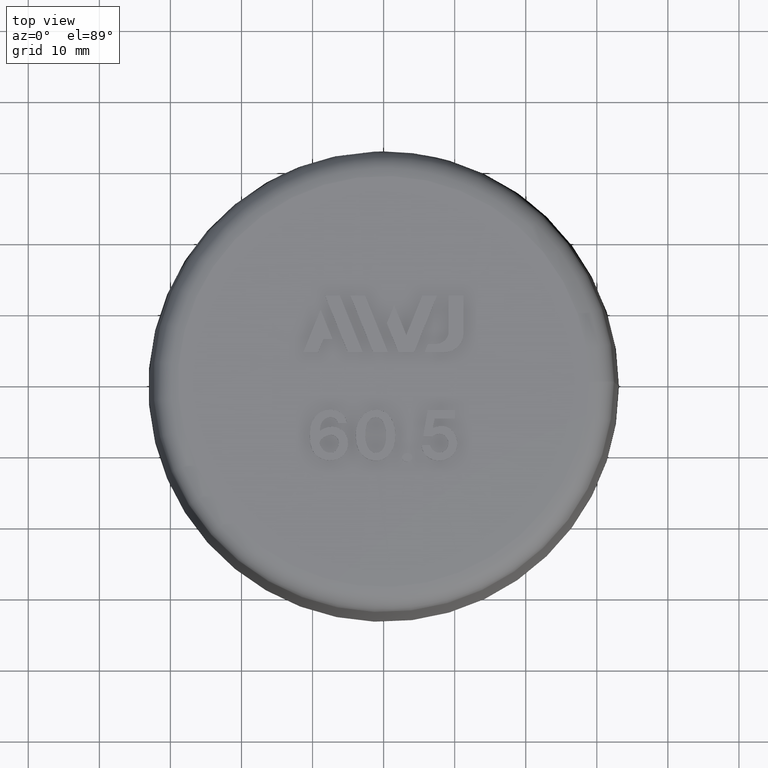
[diagram: clean part render]
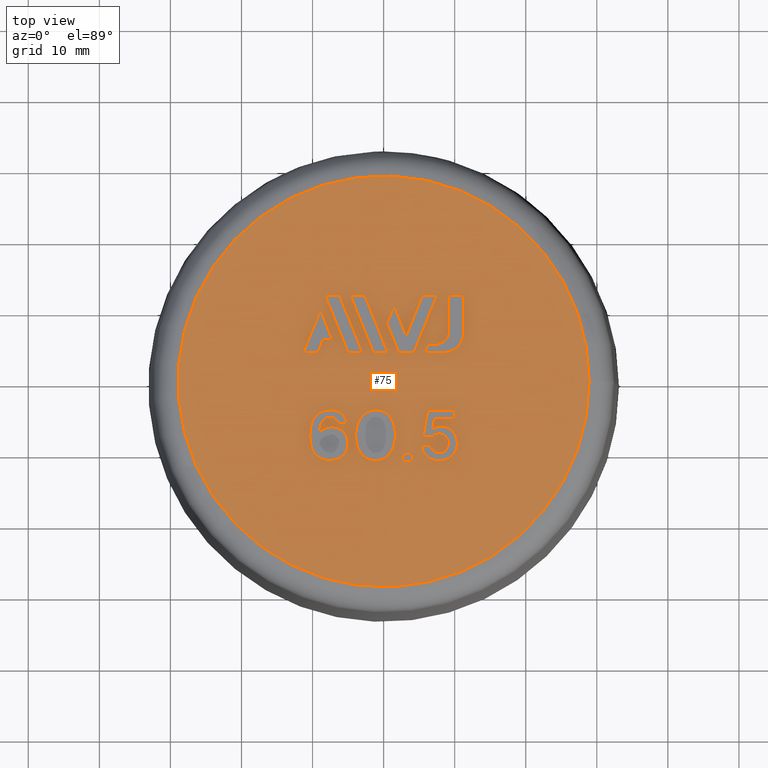
[diagram: same view with one face highlighted and labeled with its STEP entity id]
A machine part, top view. The second image highlights one B-rep face of the part: STEP entity #75.
In plain terms, the highlighted planar face has unit normal (0, 0, -1).
Its self-contained STEP definition (entity closure, byte-faithful):
#75 = ADVANCED_FACE( '', ( #141, #142, #143, #144, #145, #146, #147, #148, #149, #150 ), #151, .F. );
#141 = FACE_BOUND( '', #290, .T. );
#142 = FACE_BOUND( '', #291, .T. );
#143 = FACE_BOUND( '', #292, .T. );
#144 = FACE_OUTER_BOUND( '', #293, .T. );
#145 = FACE_BOUND( '', #294, .T. );
#146 = FACE_BOUND( '', #295, .T. );
#147 = FACE_BOUND( '', #296, .T. );
#148 = FACE_BOUND( '', #297, .T. );
#149 = FACE_BOUND( '', #298, .T. );
#150 = FACE_BOUND( '', #299, .T. );
#151 = PLANE( '', #300 );
#290 = EDGE_LOOP( '', ( #450, #451, #452, #453 ) );
#291 = EDGE_LOOP( '', ( #454, #455, #456, #457, #458, #459, #460 ) );
#292 = EDGE_LOOP( '', ( #461, #462, #463, #464 ) );
#293 = EDGE_LOOP( '', ( #465 ) );
#294 = EDGE_LOOP( '', ( #466 ) );
#295 = EDGE_LOOP( '', ( #467 ) );
#296 = EDGE_LOOP( '', ( #468, #469, #470, #471, #472, #473, #474, #475, #476, #477 ) );
#297 = EDGE_LOOP( '', ( #478, #479, #480, #481, #482, #483, #484, #485 ) );
#298 = EDGE_LOOP( '', ( #486, #487, #488, #489 ) );
#299 = EDGE_LOOP( '', ( #490, #491, #492, #493, #494 ) );
#300 = AXIS2_PLACEMENT_3D( '', #495, #496, #497 );
#450 = ORIENTED_EDGE( '', *, *, #1038, .F. );
#451 = ORIENTED_EDGE( '', *, *, #1039, .F. );
#452 = ORIENTED_EDGE( '', *, *, #1040, .F. );
#453 = ORIENTED_EDGE( '', *, *, #1041, .F. );
#454 = ORIENTED_EDGE( '', *, *, #1042, .F. );
#455 = ORIENTED_EDGE( '', *, *, #1043, .F. );
#456 = ORIENTED_EDGE( '', *, *, #1044, .F. );
#457 = ORIENTED_EDGE( '', *, *, #1045, .F. );
#458 = ORIENTED_EDGE( '', *, *, #1046, .F. );
#459 = ORIENTED_EDGE( '', *, *, #1047, .F. );
#460 = ORIENTED_EDGE( '', *, *, #1048, .F. );
#461 = ORIENTED_EDGE( '', *, *, #1049, .T. );
#462 = ORIENTED_EDGE( '', *, *, #1050, .T. );
#463 = ORIENTED_EDGE( '', *, *, #1051, .T. );
#464 = ORIENTED_EDGE( '', *, *, #1052, .T. );
#465 = ORIENTED_EDGE( '', *, *, #1053, .T. );
#466 = ORIENTED_EDGE( '', *, *, #1054, .T. );
#467 = ORIENTED_EDGE( '', *, *, #1055, .T. );
#468 = ORIENTED_EDGE( '', *, *, #1056, .T. );
#469 = ORIENTED_EDGE( '', *, *, #1057, .T. );
#470 = ORIENTED_EDGE( '', *, *, #1058, .T. );
#471 = ORIENTED_EDGE( '', *, *, #1059, .T. );
#472 = ORIENTED_EDGE( '', *, *, #1060, .T. );
#473 = ORIENTED_EDGE( '', *, *, #1061, .T. );
#474 = ORIENTED_EDGE( '', *, *, #1062, .T. );
#475 = ORIENTED_EDGE( '', *, *, #1063, .T. );
#476 = ORIENTED_EDGE( '', *, *, #1064, .T. );
#477 = ORIENTED_EDGE( '', *, *, #1065, .T. );
#478 = ORIENTED_EDGE( '', *, *, #1066, .F. );
#479 = ORIENTED_EDGE( '', *, *, #1067, .F. );
#480 = ORIENTED_EDGE( '', *, *, #1068, .F. );
#481 = ORIENTED_EDGE( '', *, *, #1069, .F. );
#482 = ORIENTED_EDGE( '', *, *, #1070, .F. );
#483 = ORIENTED_EDGE( '', *, *, #1071, .F. );
#484 = ORIENTED_EDGE( '', *, *, #1072, .F. );
#485 = ORIENTED_EDGE( '', *, *, #1073, .F. );
#486 = ORIENTED_EDGE( '', *, *, #1074, .F. );
#487 = ORIENTED_EDGE( '', *, *, #1075, .F. );
#488 = ORIENTED_EDGE( '', *, *, #1076, .F. );
#489 = ORIENTED_EDGE( '', *, *, #1077, .F. );
#490 = ORIENTED_EDGE( '', *, *, #1078, .F. );
#491 = ORIENTED_EDGE( '', *, *, #1079, .F. );
#492 = ORIENTED_EDGE( '', *, *, #1080, .F. );
#493 = ORIENTED_EDGE( '', *, *, #1081, .F. );
#494 = ORIENTED_EDGE( '', *, *, #1082, .F. );
#495 = CARTESIAN_POINT( '', ( -2.60228850187255E-015, 28.9182014383200, 42.5000000000000 ) );
#496 = DIRECTION( '', ( 6.12303176911189E-017, 0.000000000000000, -1.00000000000000 ) );
#497 = DIRECTION( '', ( -1.00000000000000, 0.000000000000000, -6.12303176911189E-017 ) );
#1038 = EDGE_CURVE( '', #1182, #1183, #1184, .T. );
#1039 = EDGE_CURVE( '', #1185, #1182, #1186, .T. );
#1040 = EDGE_CURVE( '', #1187, #1185, #1188, .T. );
#1041 = EDGE_CURVE( '', #1183, #1187, #1189, .T. );
#1042 = EDGE_CURVE( '', #1190, #1191, #1192, .T. );
#1043 = EDGE_CURVE( '', #1193, #1190, #1194, .T. );
#1044 = EDGE_CURVE( '', #1195, #1193, #1196, .T. );
#1045 = EDGE_CURVE( '', #1197, #1195, #1198, .T. );
#1046 = EDGE_CURVE( '', #1199, #1197, #1200, .T. );
#1047 = EDGE_CURVE( '', #1201, #1199, #1202, .T. );
#1048 = EDGE_CURVE( '', #1191, #1201, #1203, .T. );
#1049 = EDGE_CURVE( '', #1204, #1205, #1206, .T. );
#1050 = EDGE_CURVE( '', #1205, #1207, #1208, .T. );
#1051 = EDGE_CURVE( '', #1207, #1209, #1210, .T. );
#1052 = EDGE_CURVE( '', #1209, #1204, #1211, .T. );
#1053 = EDGE_CURVE( '', #1212, #1212, #1213, .T. );
#1054 = EDGE_CURVE( '', #1214, #1214, #1215, .T. );
#1055 = EDGE_CURVE( '', #1216, #1216, #1217, .T. );
#1056 = EDGE_CURVE( '', #1218, #1219, #1220, .T. );
#1057 = EDGE_CURVE( '', #1219, #1221, #1222, .T. );
#1058 = EDGE_CURVE( '', #1221, #1223, #1224, .T. );
#1059 = EDGE_CURVE( '', #1223, #1225, #1226, .T. );
#1060 = EDGE_CURVE( '', #1225, #1227, #1228, .T. );
#1061 = EDGE_CURVE( '', #1227, #1229, #1230, .T. );
#1062 = EDGE_CURVE( '', #1229, #1231, #1232, .T. );
#1063 = EDGE_CURVE( '', #1231, #1233, #1234, .T. );
#1064 = EDGE_CURVE( '', #1233, #1235, #1236, .T. );
#1065 = EDGE_CURVE( '', #1235, #1218, #1237, .T. );
#1066 = EDGE_CURVE( '', #1238, #1239, #1240, .T. );
#1067 = EDGE_CURVE( '', #1241, #1238, #1242, .T. );
#1068 = EDGE_CURVE( '', #1243, #1241, #1244, .T. );
#1069 = EDGE_CURVE( '', #1245, #1243, #1246, .F. );
#1070 = EDGE_CURVE( '', #1247, #1245, #1248, .T. );
#1071 = EDGE_CURVE( '', #1249, #1247, #1250, .T. );
#1072 = EDGE_CURVE( '', #1251, #1249, #1252, .T. );
#1073 = EDGE_CURVE( '', #1239, #1251, #1253, .T. );
#1074 = EDGE_CURVE( '', #1254, #1255, #1256, .T. );
#1075 = EDGE_CURVE( '', #1257, #1254, #1258, .T. );
#1076 = EDGE_CURVE( '', #1259, #1257, #1260, .T. );
#1077 = EDGE_CURVE( '', #1255, #1259, #1261, .T. );
#1078 = EDGE_CURVE( '', #1262, #1263, #1264, .T. );
#1079 = EDGE_CURVE( '', #1265, #1262, #1266, .T. );
#1080 = EDGE_CURVE( '', #1267, #1265, #1268, .T. );
#1081 = EDGE_CURVE( '', #1269, #1267, #1270, .T. );
#1082 = EDGE_CURVE( '', #1263, #1269, #1271, .T. );
#1182 = VERTEX_POINT( '', #1426 );
#1183 = VERTEX_POINT( '', #1427 );
#1184 = LINE( '', #1428, #1429 );
#1185 = VERTEX_POINT( '', #1430 );
#1186 = LINE( '', #1431, #1432 );
#1187 = VERTEX_POINT( '', #1433 );
#1188 = LINE( '', #1434, #1435 );
#1189 = LINE( '', #1436, #1437 );
#1190 = VERTEX_POINT( '', #1438 );
#1191 = VERTEX_POINT( '', #1439 );
#1192 = LINE( '', #1440, #1441 );
#1193 = VERTEX_POINT( '', #1442 );
#1194 = LINE( '', #1443, #1444 );
#1195 = VERTEX_POINT( '', #1445 );
#1196 = LINE( '', #1446, #1447 );
#1197 = VERTEX_POINT( '', #1448 );
#1198 = LINE( '', #1449, #1450 );
#1199 = VERTEX_POINT( '', #1451 );
#1200 = LINE( '', #1452, #1453 );
#1201 = VERTEX_POINT( '', #1454 );
#1202 = LINE( '', #1455, #1456 );
#1203 = LINE( '', #1457, #1458 );
#1204 = VERTEX_POINT( '', #1459 );
#1205 = VERTEX_POINT( '', #1460 );
#1206 = B_SPLINE_CURVE_WITH_KNOTS( '', 2, ( #1461, #1462, #1463, #1464, #1465, #1466, #1467, #1468, #1469, #1470, #1471, #1472, #1473, #1474, #1475, #1476, #1477, #1478, #1479, #1480, #1481, #1482, #1483 ), .UNSPECIFIED., .F., .F., ( 3, 2, 2, 2, 2, 2, 2, 2, 2, 2, 2, 3 ), ( 5.00000000000000, 6.00000000000000, 7.00000000000000, 8.00000000000000, 9.00000000000000, 10.0000000000000, 11.0000000000000, 12.0000000000000, 13.0000000000000, 14.0000000000000, 15.0000000000000, 16.0000000000000 ), .UNSPECIFIED. );
#1207 = VERTEX_POINT( '', #1484 );
#1208 = B_SPLINE_CURVE_WITH_KNOTS( '', 2, ( #1485, #1486, #1487 ), .UNSPECIFIED., .F., .F., ( 3, 3 ), ( 0.000000000000000, 1.00000000000000 ), .UNSPECIFIED. );
#1209 = VERTEX_POINT( '', #1488 );
#1210 = B_SPLINE_CURVE_WITH_KNOTS( '', 2, ( #1489, #1490, #1491 ), .UNSPECIFIED., .F., .F., ( 3, 3 ), ( 1.00000000000000, 2.00000000000000 ), .UNSPECIFIED. );
#1211 = B_SPLINE_CURVE_WITH_KNOTS( '', 2, ( #1492, #1493, #1494, #1495, #1496, #1497, #1498 ), .UNSPECIFIED., .F., .F., ( 3, 2, 2, 3 ), ( 2.00000000000000, 3.00000000000000, 4.00000000000000, 5.00000000000000 ), .UNSPECIFIED. );
#1212 = VERTEX_POINT( '', #1499 );
#1213 = CIRCLE( '', #1500, 28.9182014383200 );
#1214 = VERTEX_POINT( '', #1501 );
#1215 = B_SPLINE_CURVE_WITH_KNOTS( '', 2, ( #1502, #1503, #1504, #1505, #1506, #1507, #1508, #1509, #1510, #1511, #1512, #1513, #1514, #1515, #1516, #1517, #1518 ), .UNSPECIFIED., .T., .F., ( 3, 2, 2, 2, 2, 2, 2, 2, 3 ), ( 0.000000000000000, 1.00000000000000, 2.00000000000000, 3.00000000000000, 4.00000000000000, 5.00000000000000, 6.00000000000000, 7.00000000000000, 8.00000000000000 ), .UNSPECIFIED. );
#1216 = VERTEX_POINT( '', #1519 );
#1217 = B_SPLINE_CURVE_WITH_KNOTS( '', 2, ( #1520, #1521, #1522, #1523, #1524, #1525, #1526, #1527, #1528, #1529, #1530, #1531, #1532, #1533, #1534, #1535, #1536 ), .UNSPECIFIED., .T., .F., ( 3, 2, 2, 2, 2, 2, 2, 2, 3 ), ( 0.000000000000000, 1.00000000000000, 2.00000000000000, 3.00000000000000, 4.00000000000000, 5.00000000000000, 6.00000000000000, 7.00000000000000, 8.00000000000000 ), .UNSPECIFIED. );
#1218 = VERTEX_POINT( '', #1537 );
#1219 = VERTEX_POINT( '', #1538 );
#1220 = B_SPLINE_CURVE_WITH_KNOTS( '', 2, ( #1539, #1540, #1541, #1542, #1543, #1544, #1545, #1546, #1547, #1548, #1549, #1550, #1551 ), .UNSPECIFIED., .F., .F., ( 3, 2, 2, 2, 2, 2, 3 ), ( 14.0000000000000, 15.0000000000000, 16.0000000000000, 17.0000000000000, 18.0000000000000, 19.0000000000000, 20.0000000000000 ), .UNSPECIFIED. );
#1221 = VERTEX_POINT( '', #1552 );
#1222 = B_SPLINE_CURVE_WITH_KNOTS( '', 2, ( #1553, #1554, #1555 ), .UNSPECIFIED., .F., .F., ( 3, 3 ), ( 0.000000000000000, 1.00000000000000 ), .UNSPECIFIED. );
#1223 = VERTEX_POINT( '', #1556 );
#1224 = B_SPLINE_CURVE_WITH_KNOTS( '', 2, ( #1557, #1558, #1559 ), .UNSPECIFIED., .F., .F., ( 3, 3 ), ( 1.00000000000000, 2.00000000000000 ), .UNSPECIFIED. );
#1225 = VERTEX_POINT( '', #1560 );
#1226 = B_SPLINE_CURVE_WITH_KNOTS( '', 2, ( #1561, #1562, #1563, #1564, #1565, #1566, #1567, #1568, #1569, #1570, #1571, #1572, #1573 ), .UNSPECIFIED., .F., .F., ( 3, 2, 2, 2, 2, 2, 3 ), ( 2.00000000000000, 3.00000000000000, 4.00000000000000, 5.00000000000000, 6.00000000000000, 7.00000000000000, 8.00000000000000 ), .UNSPECIFIED. );
#1227 = VERTEX_POINT( '', #1574 );
#1228 = B_SPLINE_CURVE_WITH_KNOTS( '', 2, ( #1575, #1576, #1577 ), .UNSPECIFIED., .F., .F., ( 3, 3 ), ( 8.00000000000000, 9.00000000000000 ), .UNSPECIFIED. );
#1229 = VERTEX_POINT( '', #1578 );
#1230 = B_SPLINE_CURVE_WITH_KNOTS( '', 2, ( #1579, #1580, #1581 ), .UNSPECIFIED., .F., .F., ( 3, 3 ), ( 9.00000000000000, 10.0000000000000 ), .UNSPECIFIED. );
#1231 = VERTEX_POINT( '', #1582 );
#1232 = B_SPLINE_CURVE_WITH_KNOTS( '', 2, ( #1583, #1584, #1585 ), .UNSPECIFIED., .F., .F., ( 3, 3 ), ( 10.0000000000000, 11.0000000000000 ), .UNSPECIFIED. );
#1233 = VERTEX_POINT( '', #1586 );
#1234 = B_SPLINE_CURVE_WITH_KNOTS( '', 2, ( #1587, #1588, #1589 ), .UNSPECIFIED., .F., .F., ( 3, 3 ), ( 11.0000000000000, 12.0000000000000 ), .UNSPECIFIED. );
#1235 = VERTEX_POINT( '', #1590 );
#1236 = B_SPLINE_CURVE_WITH_KNOTS( '', 2, ( #1591, #1592, #1593 ), .UNSPECIFIED., .F., .F., ( 3, 3 ), ( 12.0000000000000, 13.0000000000000 ), .UNSPECIFIED. );
#1237 = B_SPLINE_CURVE_WITH_KNOTS( '', 2, ( #1594, #1595, #1596 ), .UNSPECIFIED., .F., .F., ( 3, 3 ), ( 13.0000000000000, 14.0000000000000 ), .UNSPECIFIED. );
#1238 = VERTEX_POINT( '', #1597 );
#1239 = VERTEX_POINT( '', #1598 );
#1240 = LINE( '', #1599, #1600 );
#1241 = VERTEX_POINT( '', #1601 );
#1242 = LINE( '', #1602, #1603 );
#1243 = VERTEX_POINT( '', #1604 );
#1244 = LINE( '', #1605, #1606 );
#1245 = VERTEX_POINT( '', #1607 );
#1246 = CIRCLE( '', #1608, 2.66799733200000 );
#1247 = VERTEX_POINT( '', #1609 );
#1248 = LINE( '', #1610, #1611 );
#1249 = VERTEX_POINT( '', #1612 );
#1250 = LINE( '', #1613, #1614 );
#1251 = VERTEX_POINT( '', #1615 );
#1252 = LINE( '', #1616, #1617 );
#1253 = CIRCLE( '', #1618, 1.77866488800000 );
#1254 = VERTEX_POINT( '', #1619 );
#1255 = VERTEX_POINT( '', #1620 );
#1256 = LINE( '', #1621, #1622 );
#1257 = VERTEX_POINT( '', #1623 );
#1258 = LINE( '', #1624, #1625 );
#1259 = VERTEX_POINT( '', #1626 );
#1260 = LINE( '', #1627, #1628 );
#1261 = LINE( '', #1629, #1630 );
#1262 = VERTEX_POINT( '', #1631 );
#1263 = VERTEX_POINT( '', #1632 );
#1264 = LINE( '', #1633, #1634 );
#1265 = VERTEX_POINT( '', #1635 );
#1266 = LINE( '', #1636, #1637 );
#1267 = VERTEX_POINT( '', #1638 );
#1268 = LINE( '', #1639, #1640 );
#1269 = VERTEX_POINT( '', #1641 );
#1270 = LINE( '', #1642, #1643 );
#1271 = LINE( '', #1644, #1645 );
#1426 = CARTESIAN_POINT( '', ( -2.94835315964389, 4.08075608960217, 42.5000000000000 ) );
#1427 = CARTESIAN_POINT( '', ( -6.18015613450435, 12.0788927207909, 42.5000000000000 ) );
#1428 = CARTESIAN_POINT( '', ( -11.1619683965960, 24.4079905813624, 42.5000000000000 ) );
#1429 = VECTOR( '', #2058, 1000.00000000000 );
#1430 = CARTESIAN_POINT( '', ( -5.01497855701644, 4.08075608960217, 42.5000000000000 ) );
#1431 = CARTESIAN_POINT( '', ( -4.12309317121034E-015, 4.08075608960217, 42.5000000000000 ) );
#1432 = VECTOR( '', #2059, 1000.00000000000 );
#1433 = CARTESIAN_POINT( '', ( -8.24632708299801, 12.0788927207909, 42.5000000000000 ) );
#1434 = CARTESIAN_POINT( '', ( -12.9378281420887, 23.6911549618549, 42.5000000000000 ) );
#1435 = VECTOR( '', #2060, 1000.00000000000 );
#1436 = CARTESIAN_POINT( '', ( -3.63336472434569E-015, 12.0788927207909, 42.5000000000000 ) );
#1437 = VECTOR( '', #2061, 1000.00000000000 );
#1438 = CARTESIAN_POINT( '', ( 7.50880101919147, 12.0788927207909, 42.5000000000000 ) );
#1439 = CARTESIAN_POINT( '', ( 5.44200131265991, 12.0788927207909, 42.5000000000000 ) );
#1440 = CARTESIAN_POINT( '', ( -3.72967153397022E-015, 12.0788927207909, 42.5000000000000 ) );
#1441 = VECTOR( '', #2062, 1000.00000000000 );
#1442 = CARTESIAN_POINT( '', ( 4.27750585315653, 4.08075608960217, 42.5000000000000 ) );
#1443 = CARTESIAN_POINT( '', ( 12.3037536528874, 23.9474111735441, 42.5000000000000 ) );
#1444 = VECTOR( '', #2063, 1000.00000000000 );
#1445 = CARTESIAN_POINT( '', ( 2.09270684995772, 4.08075608960217, 42.5000000000000 ) );
#1446 = CARTESIAN_POINT( '', ( -2.88638747064659E-015, 4.08075608960217, 42.5000000000000 ) );
#1447 = VECTOR( '', #2064, 1000.00000000000 );
#1448 = CARTESIAN_POINT( '', ( 0.446082928583294, 8.15558218943869, 42.5000000000000 ) );
#1449 = CARTESIAN_POINT( '', ( -6.82890356681131, 26.1586638054571, 42.5000000000000 ) );
#1450 = VECTOR( '', #2065, 1000.00000000000 );
#1451 = CARTESIAN_POINT( '', ( 1.47948278184907, 10.7137843165673, 42.5000000000000 ) );
#1452 = CARTESIAN_POINT( '', ( 7.59405854058204, 25.8505396228959, 42.5000000000000 ) );
#1453 = VECTOR( '', #2066, 1000.00000000000 );
#1454 = CARTESIAN_POINT( '', ( 3.18487912711769, 6.49297518538067, 42.5000000000000 ) );
#1455 = CARTESIAN_POINT( '', ( -5.05128510322638, 26.8772555234001, 42.5000000000000 ) );
#1456 = VECTOR( '', #2067, 1000.00000000000 );
#1457 = CARTESIAN_POINT( '', ( 10.5274479196490, 24.6643369467750, 42.5000000000000 ) );
#1458 = VECTOR( '', #2068, 1000.00000000000 );
#1459 = CARTESIAN_POINT( '', ( -8.97762784090909, -7.00247518512512, 42.5000000000000 ) );
#1460 = CARTESIAN_POINT( '', ( -6.02704985388377, -4.43887285998563, 42.5000000000000 ) );
#1461 = CARTESIAN_POINT( '', ( -8.97762784090909, -7.00247518512512, 42.5000000000000 ) );
#1462 = CARTESIAN_POINT( '', ( -7.50490056818182, -5.94565700330694, 42.5000000000000 ) );
#1463 = CARTESIAN_POINT( '', ( -6.08535117009873, -6.71820089342018, 42.5000000000000 ) );
#1464 = CARTESIAN_POINT( '', ( -5.50035511363636, -7.03656609421603, 42.5000000000000 ) );
#1465 = CARTESIAN_POINT( '', ( -5.21195106374892, -7.71752010089472, 42.5000000000000 ) );
#1466 = CARTESIAN_POINT( '', ( -5.00944602272727, -8.19565700330694, 42.5000000000000 ) );
#1467 = CARTESIAN_POINT( '', ( -5.00944602272727, -8.84338427603421, 42.5000000000000 ) );
#1468 = CARTESIAN_POINT( '', ( -5.00944602272727, -9.62747518512512, 42.5000000000000 ) );
#1469 = CARTESIAN_POINT( '', ( -5.54196114297238, -10.2746289770897, 42.5000000000000 ) );
#1470 = CARTESIAN_POINT( '', ( -5.99126420454545, -10.8206570033069, 42.5000000000000 ) );
#1471 = CARTESIAN_POINT( '', ( -6.72891813977319, -11.0204382774311, 42.5000000000000 ) );
#1472 = CARTESIAN_POINT( '', ( -7.62762784090909, -11.2638388214888, 42.5000000000000 ) );
#1473 = CARTESIAN_POINT( '', ( -8.48262784090910, -10.9788388214888, 42.5000000000000 ) );
#1474 = CARTESIAN_POINT( '', ( -9.46853693181819, -10.6502024578524, 42.5000000000000 ) );
#1475 = CARTESIAN_POINT( '', ( -9.95880551715488, -9.79756143987554, 42.5000000000000 ) );
#1476 = CARTESIAN_POINT( '', ( -10.4094460227273, -9.01383882148876, 42.5000000000000 ) );
#1477 = CARTESIAN_POINT( '', ( -10.3889874955513, -7.54764437387641, 42.5000000000000 ) );
#1478 = CARTESIAN_POINT( '', ( -10.3685369318182, -6.08202063967058, 42.5000000000000 ) );
#1479 = CARTESIAN_POINT( '', ( -9.86033685328959, -5.27472363992464, 42.5000000000000 ) );
#1480 = CARTESIAN_POINT( '', ( -9.05944602272727, -4.00247518512512, 42.5000000000000 ) );
#1481 = CARTESIAN_POINT( '', ( -7.46399147727273, -4.00247518512512, 42.5000000000000 ) );
#1482 = CARTESIAN_POINT( '', ( -6.60490056818182, -4.00247518512512, 42.5000000000000 ) );
#1483 = CARTESIAN_POINT( '', ( -6.02704985388377, -4.43887285998563, 42.5000000000000 ) );
#1484 = CARTESIAN_POINT( '', ( -5.13217329545455, -5.91156609421603, 42.5000000000000 ) );
#1485 = CARTESIAN_POINT( '', ( -6.02704985388377, -4.43887285998563, 42.5000000000000 ) );
#1486 = CARTESIAN_POINT( '', ( -5.29580965909091, -4.99111154876149, 42.5000000000000 ) );
#1487 = CARTESIAN_POINT( '', ( -5.13217329545455, -5.91156609421603, 42.5000000000000 ) );
#1488 = CARTESIAN_POINT( '', ( -6.44126420454545, -5.91156609421603, 42.5000000000000 ) );
#1489 = CARTESIAN_POINT( '', ( -5.13217329545455, -5.91156609421603, 42.5000000000000 ) );
#1490 = CARTESIAN_POINT( '', ( -5.78671875000000, -5.91156609421603, 42.5000000000000 ) );
#1491 = CARTESIAN_POINT( '', ( -6.44126420454545, -5.91156609421603, 42.5000000000000 ) );
#1492 = CARTESIAN_POINT( '', ( -6.44126420454545, -5.91156609421603, 42.5000000000000 ) );
#1493 = CARTESIAN_POINT( '', ( -6.64580965909091, -5.05929336694331, 42.5000000000000 ) );
#1494 = CARTESIAN_POINT( '', ( -7.50490056818182, -5.05929336694330, 42.5000000000000 ) );
#1495 = CARTESIAN_POINT( '', ( -8.15944602272727, -5.05929336694330, 42.5000000000000 ) );
#1496 = CARTESIAN_POINT( '', ( -8.60862092069853, -5.63947761015617, 42.5000000000000 ) );
#1497 = CARTESIAN_POINT( '', ( -8.97762784090909, -6.11611154876148, 42.5000000000000 ) );
#1498 = CARTESIAN_POINT( '', ( -8.97762784090909, -7.00247518512512, 42.5000000000000 ) );
#1499 = CARTESIAN_POINT( '', ( 28.9182014383200, 0.000000000000000, 42.5000000000000 ) );
#1500 = AXIS2_PLACEMENT_3D( '', #2069, #2070, #2071 );
#1501 = CARTESIAN_POINT( '', ( -3.04842238185541, -10.3116909243037, 42.5000000000000 ) );
#1502 = CARTESIAN_POINT( '', ( -3.04842238185541, -10.3116909243037, 42.5000000000000 ) );
#1503 = CARTESIAN_POINT( '', ( -3.86399147727273, -9.42292973057967, 42.5000000000000 ) );
#1504 = CARTESIAN_POINT( '', ( -3.92086939702855, -7.92198462591204, 42.5000000000000 ) );
#1505 = CARTESIAN_POINT( '', ( -3.98671875000000, -6.18429336694330, 42.5000000000000 ) );
#1506 = CARTESIAN_POINT( '', ( -3.13744602272727, -5.05192973057967, 42.5000000000000 ) );
#1507 = CARTESIAN_POINT( '', ( -2.35035511363636, -4.00247518512512, 42.5000000000000 ) );
#1508 = CARTESIAN_POINT( '', ( -1.08217329545455, -4.00247518512512, 42.5000000000000 ) );
#1509 = CARTESIAN_POINT( '', ( 0.104190340909092, -4.00247518512512, 42.5000000000000 ) );
#1510 = CARTESIAN_POINT( '', ( 0.823848906681647, -4.86873086614764, 42.5000000000000 ) );
#1511 = CARTESIAN_POINT( '', ( 1.57691761363637, -5.77520245785240, 42.5000000000000 ) );
#1512 = CARTESIAN_POINT( '', ( 1.65261826764039, -7.27344456834865, 42.5000000000000 ) );
#1513 = CARTESIAN_POINT( '', ( 1.74055397727273, -9.01383882148876, 42.5000000000000 ) );
#1514 = CARTESIAN_POINT( '', ( 0.927393439756589, -10.1084780066066, 42.5000000000000 ) );
#1515 = CARTESIAN_POINT( '', ( 0.145099431818183, -11.1615660942160, 42.5000000000000 ) );
#1516 = CARTESIAN_POINT( '', ( -1.08217329545455, -11.1615660942160, 42.5000000000000 ) );
#1517 = CARTESIAN_POINT( '', ( -2.26853693181818, -11.1615660942160, 42.5000000000000 ) );
#1518 = CARTESIAN_POINT( '', ( -3.04842238185541, -10.3116909243037, 42.5000000000000 ) );
#1519 = CARTESIAN_POINT( '', ( 3.33600852272727, -10.1047479123978, 42.5000000000000 ) );
#1520 = CARTESIAN_POINT( '', ( 3.33600852272727, -10.1047479123978, 42.5000000000000 ) );
#1521 = CARTESIAN_POINT( '', ( 3.62237215909091, -10.1047479123979, 42.5000000000000 ) );
#1522 = CARTESIAN_POINT( '', ( 3.86782670454545, -10.3092933669433, 42.5000000000000 ) );
#1523 = CARTESIAN_POINT( '', ( 4.07237215909091, -10.4797479123979, 42.5000000000000 ) );
#1524 = CARTESIAN_POINT( '', ( 4.07237215909091, -10.7183842760342, 42.5000000000000 ) );
#1525 = CARTESIAN_POINT( '', ( 4.07237215909091, -10.9570206396706, 42.5000000000000 ) );
#1526 = CARTESIAN_POINT( '', ( 3.86782670454545, -11.1274751851251, 42.5000000000000 ) );
#1527 = CARTESIAN_POINT( '', ( 3.62237215909091, -11.3320206396706, 42.5000000000000 ) );
#1528 = CARTESIAN_POINT( '', ( 3.33600852272727, -11.3320206396706, 42.5000000000000 ) );
#1529 = CARTESIAN_POINT( '', ( 3.04964488636364, -11.3320206396706, 42.5000000000000 ) );
#1530 = CARTESIAN_POINT( '', ( 2.80419034090909, -11.1274751851251, 42.5000000000000 ) );
#1531 = CARTESIAN_POINT( '', ( 2.59964488636364, -10.9570206396706, 42.5000000000000 ) );
#1532 = CARTESIAN_POINT( '', ( 2.59964488636364, -10.7183842760342, 42.5000000000000 ) );
#1533 = CARTESIAN_POINT( '', ( 2.59964488636364, -10.4797479123978, 42.5000000000000 ) );
#1534 = CARTESIAN_POINT( '', ( 2.80419034090909, -10.3092933669433, 42.5000000000000 ) );
#1535 = CARTESIAN_POINT( '', ( 3.04964488636364, -10.1047479123978, 42.5000000000000 ) );
#1536 = CARTESIAN_POINT( '', ( 3.33600852272727, -10.1047479123978, 42.5000000000000 ) );
#1537 = CARTESIAN_POINT( '', ( 6.89509943181818, -6.62747518512512, 42.5000000000000 ) );
#1538 = CARTESIAN_POINT( '', ( 5.98353475075991, -10.4574319512935, 42.5000000000000 ) );
#1539 = CARTESIAN_POINT( '', ( 6.89509943181818, -6.62747518512512, 42.5000000000000 ) );
#1540 = CARTESIAN_POINT( '', ( 8.16328125000000, -5.97974791239785, 42.5000000000000 ) );
#1541 = CARTESIAN_POINT( '', ( 9.22563136647683, -6.59560305238442, 42.5000000000000 ) );
#1542 = CARTESIAN_POINT( '', ( 10.0450994318182, -7.07065700330694, 42.5000000000000 ) );
#1543 = CARTESIAN_POINT( '', ( 10.2905539772727, -8.05929336694331, 42.5000000000000 ) );
#1544 = CARTESIAN_POINT( '', ( 10.5360085227273, -9.04792973057967, 42.5000000000000 ) );
#1545 = CARTESIAN_POINT( '', ( 10.0635684802177, -9.91032028436693, 42.5000000000000 ) );
#1546 = CARTESIAN_POINT( '', ( 9.67691761363636, -10.6161115487615, 42.5000000000000 ) );
#1547 = CARTESIAN_POINT( '', ( 8.89664558327773, -10.9500117419330, 42.5000000000000 ) );
#1548 = CARTESIAN_POINT( '', ( 8.16328125000000, -11.2638388214888, 42.5000000000000 ) );
#1549 = CARTESIAN_POINT( '', ( 7.38490287162162, -11.1341090917590, 42.5000000000000 ) );
#1550 = CARTESIAN_POINT( '', ( 6.52691761363636, -10.9911115487615, 42.5000000000000 ) );
#1551 = CARTESIAN_POINT( '', ( 5.98353475075991, -10.4574319512935, 42.5000000000000 ) );
#1552 = CARTESIAN_POINT( '', ( 5.34055397727273, -8.97974791239785, 42.5000000000000 ) );
#1553 = CARTESIAN_POINT( '', ( 5.98353475075991, -10.4574319512935, 42.5000000000000 ) );
#1554 = CARTESIAN_POINT( '', ( 5.38146306818182, -9.86611154876149, 42.5000000000000 ) );
#1555 = CARTESIAN_POINT( '', ( 5.34055397727273, -8.97974791239785, 42.5000000000000 ) );
#1556 = CARTESIAN_POINT( '', ( 6.52691761363636, -8.97974791239785, 42.5000000000000 ) );
#1557 = CARTESIAN_POINT( '', ( 5.34055397727273, -8.97974791239785, 42.5000000000000 ) );
#1558 = CARTESIAN_POINT( '', ( 5.93373579545455, -8.97974791239785, 42.5000000000000 ) );
#1559 = CARTESIAN_POINT( '', ( 6.52691761363636, -8.97974791239785, 42.5000000000000 ) );
#1560 = CARTESIAN_POINT( '', ( 6.81328125000000, -7.82065700330694, 42.5000000000000 ) );
#1561 = CARTESIAN_POINT( '', ( 6.52691761363636, -8.97974791239785, 42.5000000000000 ) );
#1562 = CARTESIAN_POINT( '', ( 6.64964488636364, -9.52520245785240, 42.5000000000000 ) );
#1563 = CARTESIAN_POINT( '', ( 7.10574869634676, -9.82266146436313, 42.5000000000000 ) );
#1564 = CARTESIAN_POINT( '', ( 7.59055397727273, -10.1388388214888, 42.5000000000000 ) );
#1565 = CARTESIAN_POINT( '', ( 8.08440588596254, -10.0141287435368, 42.5000000000000 ) );
#1566 = CARTESIAN_POINT( '', ( 8.94055397727273, -9.79792973057967, 42.5000000000000 ) );
#1567 = CARTESIAN_POINT( '', ( 9.08046222291470, -8.94848681061054, 42.5000000000000 ) );
#1568 = CARTESIAN_POINT( '', ( 9.22691761363637, -8.05929336694331, 42.5000000000000 ) );
#1569 = CARTESIAN_POINT( '', ( 8.49055397727273, -7.58202063967058, 42.5000000000000 ) );
#1570 = CARTESIAN_POINT( '', ( 8.12237215909091, -7.34338427603421, 42.5000000000000 ) );
#1571 = CARTESIAN_POINT( '', ( 7.63146306818182, -7.41156609421603, 42.5000000000000 ) );
#1572 = CARTESIAN_POINT( '', ( 7.14055397727273, -7.47974791239785, 42.5000000000000 ) );
#1573 = CARTESIAN_POINT( '', ( 6.81328125000000, -7.82065700330694, 42.5000000000000 ) );
#1574 = CARTESIAN_POINT( '', ( 5.54509943181818, -7.82065700330694, 42.5000000000000 ) );
#1575 = CARTESIAN_POINT( '', ( 6.81328125000000, -7.82065700330694, 42.5000000000000 ) );
#1576 = CARTESIAN_POINT( '', ( 6.17919034090909, -7.82065700330694, 42.5000000000000 ) );
#1577 = CARTESIAN_POINT( '', ( 5.54509943181818, -7.82065700330694, 42.5000000000000 ) );
#1578 = CARTESIAN_POINT( '', ( 6.19964488636364, -4.07065700330694, 42.5000000000000 ) );
#1579 = CARTESIAN_POINT( '', ( 5.54509943181818, -7.82065700330694, 42.5000000000000 ) );
#1580 = CARTESIAN_POINT( '', ( 5.87237215909091, -5.94565700330694, 42.5000000000000 ) );
#1581 = CARTESIAN_POINT( '', ( 6.19964488636364, -4.07065700330694, 42.5000000000000 ) );
#1582 = CARTESIAN_POINT( '', ( 10.0041903409091, -4.07065700330694, 42.5000000000000 ) );
#1583 = CARTESIAN_POINT( '', ( 6.19964488636364, -4.07065700330694, 42.5000000000000 ) );
#1584 = CARTESIAN_POINT( '', ( 8.10191761363636, -4.07065700330694, 42.5000000000000 ) );
#1585 = CARTESIAN_POINT( '', ( 10.0041903409091, -4.07065700330694, 42.5000000000000 ) );
#1586 = CARTESIAN_POINT( '', ( 10.0041903409091, -5.22974791239785, 42.5000000000000 ) );
#1587 = CARTESIAN_POINT( '', ( 10.0041903409091, -4.07065700330694, 42.5000000000000 ) );
#1588 = CARTESIAN_POINT( '', ( 10.0041903409091, -4.65020245785240, 42.5000000000000 ) );
#1589 = CARTESIAN_POINT( '', ( 10.0041903409091, -5.22974791239785, 42.5000000000000 ) );
#1590 = CARTESIAN_POINT( '', ( 7.18146306818182, -5.22974791239785, 42.5000000000000 ) );
#1591 = CARTESIAN_POINT( '', ( 10.0041903409091, -5.22974791239785, 42.5000000000000 ) );
#1592 = CARTESIAN_POINT( '', ( 8.59282670454546, -5.22974791239785, 42.5000000000000 ) );
#1593 = CARTESIAN_POINT( '', ( 7.18146306818182, -5.22974791239785, 42.5000000000000 ) );
#1594 = CARTESIAN_POINT( '', ( 7.18146306818182, -5.22974791239785, 42.5000000000000 ) );
#1595 = CARTESIAN_POINT( '', ( 7.03828125000000, -5.92861154876149, 42.5000000000000 ) );
#1596 = CARTESIAN_POINT( '', ( 6.89509943181818, -6.62747518512512, 42.5000000000000 ) );
#1597 = CARTESIAN_POINT( '', ( 9.14927787471296, 12.0788927207909, 42.5000000000000 ) );
#1598 = CARTESIAN_POINT( '', ( 9.14927787471297, 7.02250150918716, 42.5000000000000 ) );
#1599 = CARTESIAN_POINT( '', ( 9.14927787471296, 28.9182014383200, 42.5000000000000 ) );
#1600 = VECTOR( '', #2072, 1000.00000000000 );
#1601 = CARTESIAN_POINT( '', ( 11.2395168271386, 12.0788927207909, 42.5000000000000 ) );
#1602 = CARTESIAN_POINT( '', ( -3.72967153397022E-015, 12.0788927207909, 42.5000000000000 ) );
#1603 = VECTOR( '', #2073, 1000.00000000000 );
#1604 = CARTESIAN_POINT( '', ( 11.2395168271386, 6.74875342160217, 42.5000000000000 ) );
#1605 = CARTESIAN_POINT( '', ( 11.2395168271386, 28.9182014383200, 42.5000000000000 ) );
#1606 = VECTOR( '', #2074, 1000.00000000000 );
#1607 = CARTESIAN_POINT( '', ( 8.57151949513860, 4.08075608960217, 42.5000000000000 ) );
#1608 = AXIS2_PLACEMENT_3D( '', #2075, #2076, #2077 );
#1609 = CARTESIAN_POINT( '', ( 5.76462355403735, 4.08075608960217, 42.5000000000000 ) );
#1610 = CARTESIAN_POINT( '', ( -4.26514265559736E-015, 4.08075608960217, 42.5000000000000 ) );
#1611 = VECTOR( '', #2078, 1000.00000000000 );
#1612 = CARTESIAN_POINT( '', ( 6.23453792412251, 5.24383662118716, 42.5000000000000 ) );
#1613 = CARTESIAN_POINT( '', ( 13.5824361728794, 23.4305488080223, 42.5000000000000 ) );
#1614 = VECTOR( '', #2079, 1000.00000000000 );
#1615 = CARTESIAN_POINT( '', ( 7.37061298671297, 5.24383662118716, 42.5000000000000 ) );
#1616 = CARTESIAN_POINT( '', ( -4.18727501398170E-015, 5.24383662118716, 42.5000000000000 ) );
#1617 = VECTOR( '', #2080, 1000.00000000000 );
#1618 = AXIS2_PLACEMENT_3D( '', #2081, #2082, #2083 );
#1619 = CARTESIAN_POINT( '', ( 0.605590038409354, 4.08075608960217, 42.5000000000000 ) );
#1620 = CARTESIAN_POINT( '', ( -2.62621293645110, 12.0788927207909, 42.5000000000000 ) );
#1621 = CARTESIAN_POINT( '', ( -8.10684222153993, 25.6424738512053, 42.5000000000000 ) );
#1622 = VECTOR( '', #2084, 1000.00000000000 );
#1623 = CARTESIAN_POINT( '', ( -1.46118298814890, 4.08075608960217, 42.5000000000000 ) );
#1624 = CARTESIAN_POINT( '', ( -4.12309317121034E-015, 4.08075608960217, 42.5000000000000 ) );
#1625 = VECTOR( '', #2085, 1000.00000000000 );
#1626 = CARTESIAN_POINT( '', ( -4.69298507367690, 12.0788927207909, 42.5000000000000 ) );
#1627 = CARTESIAN_POINT( '', ( -9.88352977543014, 24.9245697196448, 42.5000000000000 ) );
#1628 = VECTOR( '', #2086, 1000.00000000000 );
#1629 = CARTESIAN_POINT( '', ( -3.63336472434569E-015, 12.0788927207909, 42.5000000000000 ) );
#1630 = VECTOR( '', #2087, 1000.00000000000 );
#1631 = CARTESIAN_POINT( '', ( -11.3009963789923, 4.08075608960216, 42.5000000000000 ) );
#1632 = CARTESIAN_POINT( '', ( -9.23482543049866, 4.08075608960217, 42.5000000000000 ) );
#1633 = CARTESIAN_POINT( '', ( -4.26514265559736E-015, 4.08075608960217, 42.5000000000000 ) );
#1634 = VECTOR( '', #2088, 1000.00000000000 );
#1635 = CARTESIAN_POINT( '', ( -8.87844768687678, 10.0775478821377, 42.5000000000000 ) );
#1636 = CARTESIAN_POINT( '', ( -1.08950875177212, 29.3583347784402, 42.5000000000000 ) );
#1637 = VECTOR( '', #2089, 1000.00000000000 );
#1638 = CARTESIAN_POINT( '', ( -7.20270435328844, 5.92802052500256, 42.5000000000000 ) );
#1639 = CARTESIAN_POINT( '', ( -14.1752574218083, 23.1936716106883, 42.5000000000000 ) );
#1640 = VECTOR( '', #2090, 1000.00000000000 );
#1641 = CARTESIAN_POINT( '', ( -8.48793914271903, 5.92802052500256, 42.5000000000000 ) );
#1642 = CARTESIAN_POINT( '', ( -2.86525784504372E-015, 5.92802052500256, 42.5000000000000 ) );
#1643 = VECTOR( '', #2091, 1000.00000000000 );
#1644 = CARTESIAN_POINT( '', ( 0.694002931304938, 28.6376020486835, 42.5000000000000 ) );
#1645 = VECTOR( '', #2092, 1000.00000000000 );
#2058 = DIRECTION( '', ( -0.374641075834904, 0.927169922019295, -2.29393920935137E-017 ) );
#2059 = DIRECTION( '', ( 1.00000000000000, -6.12303176911189E-017, 6.12303176911189E-017 ) );
#2060 = DIRECTION( '', ( 0.374595787424495, -0.927188220397468, 2.29366190697566E-017 ) );
#2061 = DIRECTION( '', ( -1.00000000000000, 6.12303176911189E-017, -6.12303176911189E-017 ) );
#2062 = DIRECTION( '', ( -1.00000000000000, 6.69494841509799E-017, -6.12303176911189E-017 ) );
#2063 = DIRECTION( '', ( 0.374590469627021, 0.927190368837278, 2.29362934593279E-017 ) );
#2064 = DIRECTION( '', ( 1.00000000000000, -1.14383329197221E-017, 6.12303176911189E-017 ) );
#2065 = DIRECTION( '', ( 0.374662791989133, -0.927161146888127, 2.29407217805362E-017 ) );
#2066 = DIRECTION( '', ( -0.374550228315492, -0.927206625552694, -2.29338294710387E-017 ) );
#2067 = DIRECTION( '', ( -0.374621466961798, 0.927177845125405, -2.29381914359839E-017 ) );
#2068 = DIRECTION( '', ( -0.374644407000048, -0.927168575990139, -2.29395960618138E-017 ) );
#2069 = CARTESIAN_POINT( '', ( -2.60228850187255E-015, 0.000000000000000, 42.5000000000000 ) );
#2070 = DIRECTION( '', ( -6.12303176911189E-017, 0.000000000000000, 1.00000000000000 ) );
#2071 = DIRECTION( '', ( 1.00000000000000, 0.000000000000000, 6.12303176911189E-017 ) );
#2072 = DIRECTION( '', ( -6.69494841509799E-017, -1.00000000000000, -4.09933818382103E-033 ) );
#2073 = DIRECTION( '', ( -1.00000000000000, 6.69494841509798E-017, -6.12303176911189E-017 ) );
#2074 = DIRECTION( '', ( 6.69494841509799E-017, 1.00000000000000, 4.09933818382103E-033 ) );
#2075 = CARTESIAN_POINT( '', ( 8.57151949513860, 6.74875342160217, 42.5000000000000 ) );
#2076 = DIRECTION( '', ( 6.12303176911189E-017, 0.000000000000000, -1.00000000000000 ) );
#2077 = DIRECTION( '', ( -1.00000000000000, 0.000000000000000, -6.12303176911189E-017 ) );
#2078 = DIRECTION( '', ( 1.00000000000000, -6.69494841509799E-017, 6.12303176911189E-017 ) );
#2079 = DIRECTION( '', ( -0.374606136016172, -0.927184039368147, -2.29372527173127E-017 ) );
#2080 = DIRECTION( '', ( -1.00000000000000, 6.69494841509799E-017, -6.12303176911189E-017 ) );
#2081 = CARTESIAN_POINT( '', ( 7.37061298671297, 7.02250150918716, 42.5000000000000 ) );
#2082 = DIRECTION( '', ( 6.12303176911189E-017, 0.000000000000000, -1.00000000000000 ) );
#2083 = DIRECTION( '', ( -1.00000000000000, 0.000000000000000, -6.12303176911189E-017 ) );
#2084 = DIRECTION( '', ( -0.374641075834904, 0.927169922019295, -2.29393920935137E-017 ) );
#2085 = DIRECTION( '', ( 1.00000000000000, -6.12303176911189E-017, 6.12303176911189E-017 ) );
#2086 = DIRECTION( '', ( 0.374640987210495, -0.927169957829709, 2.29393866670130E-017 ) );
#2087 = DIRECTION( '', ( -1.00000000000000, 6.12303176911189E-017, -6.12303176911189E-017 ) );
#2088 = DIRECTION( '', ( 1.00000000000000, -6.69494841509799E-017, 6.12303176911189E-017 ) );
#2089 = DIRECTION( '', ( -0.374565060835224, -0.927200633736574, -2.29347376709340E-017 ) );
#2090 = DIRECTION( '', ( -0.374457798873769, 0.927243957576760, -2.29281699869579E-017 ) );
#2091 = DIRECTION( '', ( 1.00000000000000, -1.14383329197221E-017, 6.12303176911189E-017 ) );
#2092 = DIRECTION( '', ( 0.374840859640758, 0.927089170438194, 2.29516249194157E-017 ) );